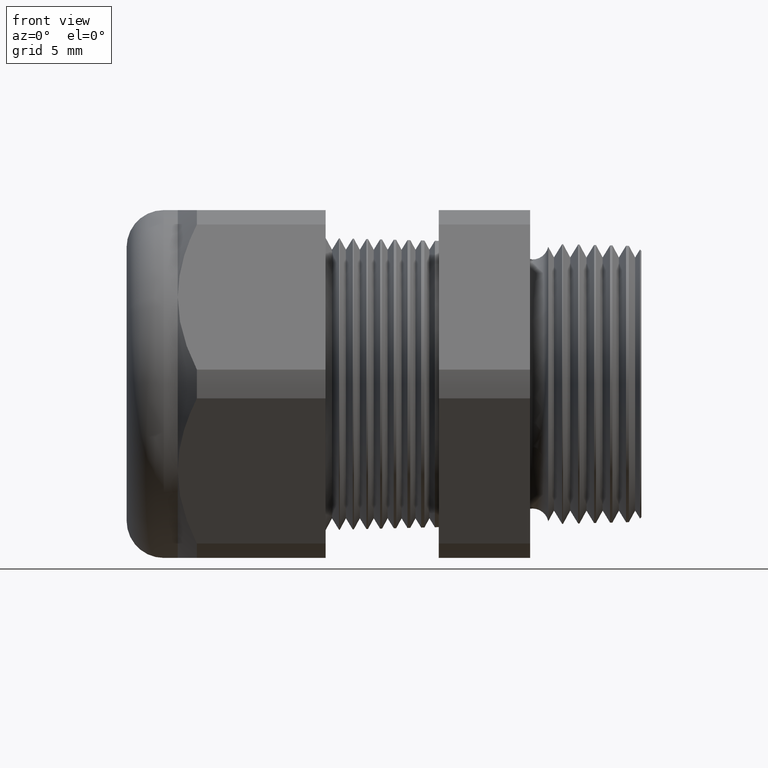
[diagram: clean part render]
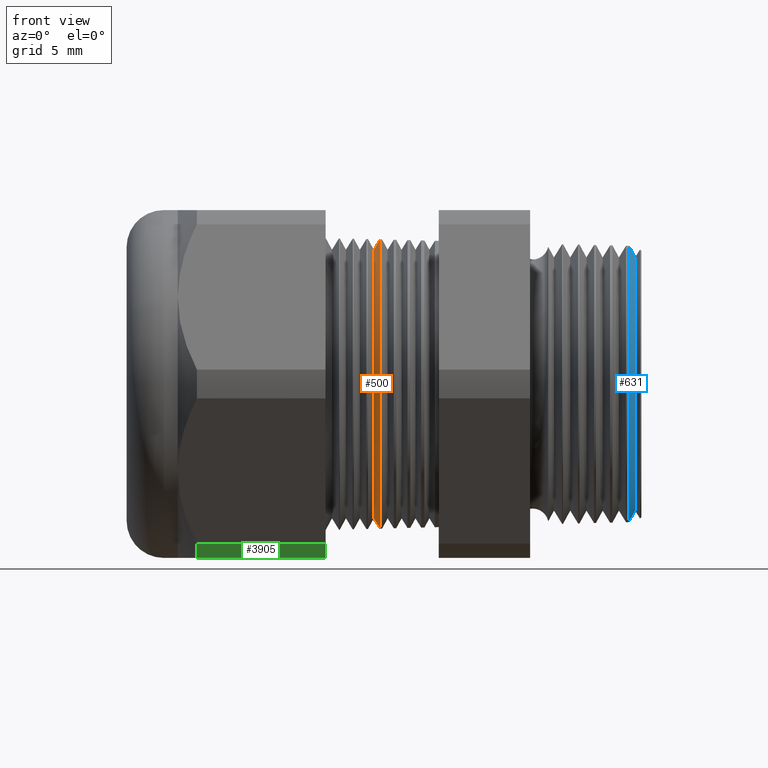
[diagram: same view with three faces highlighted in distinct colors, each labeled with its STEP entity id]
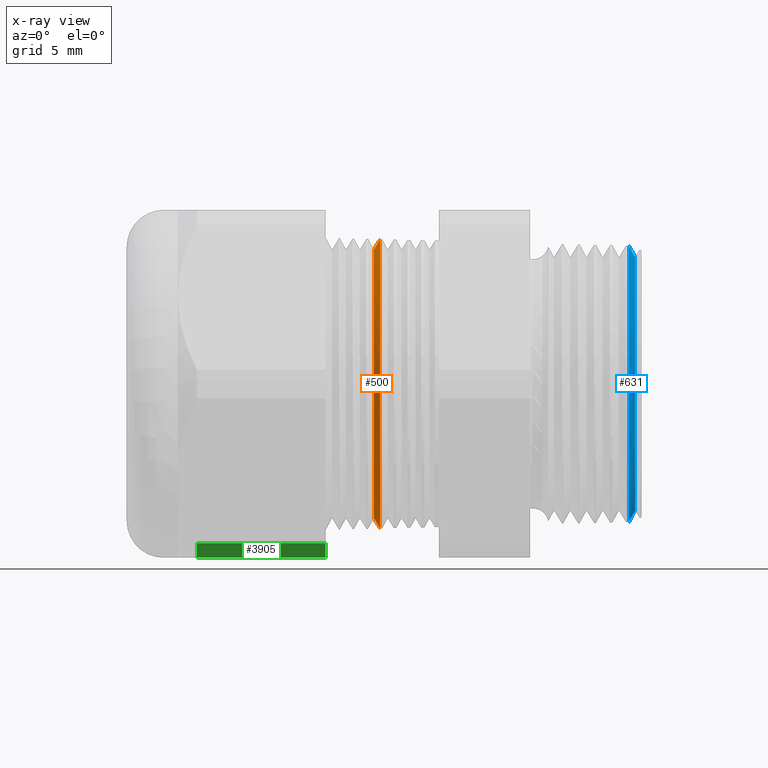
[diagram: x-ray of the same camera — body ghosted, the three highlighted faces saturated]
A machine part, front view with three faces highlighted in distinct colors.
The next image is the same camera in x-ray (body ghosted, the three faces saturated) — at least one of them is partly hidden behind the body in this view.
Their STEP definitions:

[orange] entity #500 — the highlighted conical surface has half-angle 58.5 deg.
#426 = ORIENTED_EDGE ( 'NONE', *, *, #445, .T. ) ;
#427 = ORIENTED_EDGE ( 'NONE', *, *, #768, .T. ) ;
#428 = ORIENTED_EDGE ( 'NONE', *, *, #3116, .T. ) ;
#445 = EDGE_CURVE ( 'NONE', #752, #751, #1692, .T. ) ;
#500 = ADVANCED_FACE ( 'NONE', ( #1761 ), #1760, .T. ) ;
#751 = VERTEX_POINT ( 'NONE', #2226 ) ;
#752 = VERTEX_POINT ( 'NONE', #2225 ) ;
#754 = EDGE_CURVE ( 'NONE', #752, #755, #2224, .T. ) ;
#755 = VERTEX_POINT ( 'NONE', #2220 ) ;
#758 = VERTEX_POINT ( 'NONE', #2214 ) ;
#768 = EDGE_CURVE ( 'NONE', #751, #758, #2261, .T. ) ;
#1691 = AXIS2_PLACEMENT_3D ( 'NONE', #1697, #1754, #1753 ) ;
#1692 = CIRCLE ( 'NONE', #1691, 0.2896307351718082600 ) ;
#1697 = CARTESIAN_POINT ( 'NONE',  ( -0.6470917547981791500, 0.0000000000000000000, 0.0000000000000000000 ) ) ;
#1753 = DIRECTION ( 'NONE',  ( 0.0000000000000000000, 0.0000000000000000000, -1.000000000000000000 ) ) ;
#1754 = DIRECTION ( 'NONE',  ( 1.000000000000000000, 0.0000000000000000000, 0.0000000000000000000 ) ) ;
#1755 = DIRECTION ( 'NONE',  ( 0.0000000000000000000, 0.0000000000000000000, -1.000000000000000000 ) ) ;
#1756 = DIRECTION ( 'NONE',  ( 1.000000000000000000, 0.0000000000000000000, 0.0000000000000000000 ) ) ;
#1757 = CARTESIAN_POINT ( 'NONE',  ( -0.6470917547981791500, 0.0000000000000000000, 0.0000000000000000000 ) ) ;
#1758 = AXIS2_PLACEMENT_3D ( 'NONE', #1757, #1756, #1755 ) ;
#1760 = CONICAL_SURFACE ( 'NONE', #1758, 0.2896307351718082600, 1.021017612416696300 ) ;
#1761 = FACE_OUTER_BOUND ( 'NONE', #3133, .T. ) ;
#2214 = CARTESIAN_POINT ( 'NONE',  ( -0.6334299194138568500, 3.819977376450093400E-017, -0.3119248242929889000 ) ) ;
#2220 = CARTESIAN_POINT ( 'NONE',  ( -0.6334299194138568500, 0.0000000000000000000, 0.3119248242929889000 ) ) ;
#2221 = DIRECTION ( 'NONE',  ( 0.5224985647159373600, 1.044183048100720900E-016, 0.8526401643540992800 ) ) ;
#2222 = VECTOR ( 'NONE', #2221, 39.37007874015748100 ) ;
#2223 = CARTESIAN_POINT ( 'NONE',  ( -0.6470917547981791500, 3.546953527628497700E-017, 0.2896307351718082600 ) ) ;
#2224 = LINE ( 'NONE', #2223, #2222 ) ;
#2225 = CARTESIAN_POINT ( 'NONE',  ( -0.6470917547981791500, 0.0000000000000000000, 0.2896307351718082600 ) ) ;
#2226 = CARTESIAN_POINT ( 'NONE',  ( -0.6470917547981791500, 3.687656511454631700E-017, -0.2896307351718082600 ) ) ;
#2258 = DIRECTION ( 'NONE',  ( 0.5224985647159373600, 0.0000000000000000000, -0.8526401643540992800 ) ) ;
#2259 = VECTOR ( 'NONE', #2258, 39.37007874015748100 ) ;
#2260 = CARTESIAN_POINT ( 'NONE',  ( -0.6470917547981791500, 0.0000000000000000000, -0.2896307351718082600 ) ) ;
#2261 = LINE ( 'NONE', #2260, #2259 ) ;
#2677 = DIRECTION ( 'NONE',  ( 0.0000000000000000000, 0.0000000000000000000, -1.000000000000000000 ) ) ;
#2678 = DIRECTION ( 'NONE',  ( -1.000000000000000000, 0.0000000000000000000, 0.0000000000000000000 ) ) ;
#2679 = CARTESIAN_POINT ( 'NONE',  ( -0.6334299194138568500, 0.0000000000000000000, 0.0000000000000000000 ) ) ;
#2680 = AXIS2_PLACEMENT_3D ( 'NONE', #2679, #2678, #2677 ) ;
#2685 = CIRCLE ( 'NONE', #2680, 0.3119248242929889600 ) ;
#3116 = EDGE_CURVE ( 'NONE', #758, #755, #2685, .T. ) ;
#3119 = ORIENTED_EDGE ( 'NONE', *, *, #754, .F. ) ;
#3133 = EDGE_LOOP ( 'NONE', ( #3119, #426, #427, #428 ) ) ;

[blue] entity #631 — the highlighted conical surface has half-angle 61.5 deg.
#179 = EDGE_CURVE ( 'NONE', #3158, #3156, #1305, .T. ) ;
#631 = ADVANCED_FACE ( 'NONE', ( #1991 ), #1988, .T. ) ;
#632 = EDGE_LOOP ( 'NONE', ( #633, #634, #636, #637 ) ) ;
#633 = ORIENTED_EDGE ( 'NONE', *, *, #3153, .F. ) ;
#634 = ORIENTED_EDGE ( 'NONE', *, *, #635, .F. ) ;
#635 = EDGE_CURVE ( 'NONE', #3186, #3183, #1989, .T. ) ;
#636 = ORIENTED_EDGE ( 'NONE', *, *, #3154, .T. ) ;
#637 = ORIENTED_EDGE ( 'NONE', *, *, #179, .T. ) ;
#1302 = DIRECTION ( 'NONE',  ( 0.0000000000000000000, 0.0000000000000000000, 1.000000000000000000 ) ) ;
#1303 = DIRECTION ( 'NONE',  ( 1.000000000000000000, 0.0000000000000000000, 0.0000000000000000000 ) ) ;
#1304 = AXIS2_PLACEMENT_3D ( 'NONE', #1311, #1303, #1302 ) ;
#1305 = CIRCLE ( 'NONE', #1304, 0.2978771583443559600 ) ;
#1311 = CARTESIAN_POINT ( 'NONE',  ( -0.09697120011612865600, 0.0000000000000000000, 0.0000000000000000000 ) ) ;
#1981 = DIRECTION ( 'NONE',  ( 0.0000000000000000000, 0.0000000000000000000, -1.000000000000000000 ) ) ;
#1982 = DIRECTION ( 'NONE',  ( 1.000000000000000000, 0.0000000000000000000, 0.0000000000000000000 ) ) ;
#1983 = CARTESIAN_POINT ( 'NONE',  ( -0.08347073567907516100, 0.0000000000000000000, 0.0000000000000000000 ) ) ;
#1984 = AXIS2_PLACEMENT_3D ( 'NONE', #1983, #1982, #1981 ) ;
#1985 = DIRECTION ( 'NONE',  ( 0.0000000000000000000, 0.0000000000000000000, 1.000000000000000000 ) ) ;
#1986 = DIRECTION ( 'NONE',  ( -1.000000000000000000, 0.0000000000000000000, 0.0000000000000000000 ) ) ;
#1987 = AXIS2_PLACEMENT_3D ( 'NONE', #1990, #1986, #1985 ) ;
#1988 = CONICAL_SURFACE ( 'NONE', #1987, 0.3034555137900915000, 1.073377489976501000 ) ;
#1989 = CIRCLE ( 'NONE', #1984, 0.2730123959962614800 ) ;
#1990 = CARTESIAN_POINT ( 'NONE',  ( -0.09999999999999996400, 0.0000000000000000000, 0.0000000000000000000 ) ) ;
#1991 = FACE_OUTER_BOUND ( 'NONE', #632, .T. ) ;
#2736 = DIRECTION ( 'NONE',  ( -0.4771587602596187900, 0.0000000000000000000, 0.8788171126619597200 ) ) ;
#2737 = VECTOR ( 'NONE', #2736, 39.37007874015748900 ) ;
#2738 = CARTESIAN_POINT ( 'NONE',  ( -0.09999999999999996400, 0.0000000000000000000, 0.3034555137900915000 ) ) ;
#2739 = LINE ( 'NONE', #2738, #2737 ) ;
#2740 = DIRECTION ( 'NONE',  ( -0.4771587602596187900, 1.076240564057388000E-016, -0.8788171126619597200 ) ) ;
#2741 = VECTOR ( 'NONE', #2740, 39.37007874015748900 ) ;
#2742 = CARTESIAN_POINT ( 'NONE',  ( -0.09999999999999996400, 3.716258236466510600E-017, -0.3034555137900915000 ) ) ;
#2747 = LINE ( 'NONE', #2742, #2741 ) ;
#2794 = CARTESIAN_POINT ( 'NONE',  ( -0.09697120011612865600, 0.0000000000000000000, 0.2978771583443559600 ) ) ;
#2795 = CARTESIAN_POINT ( 'NONE',  ( -0.09697120011612865600, 3.648931353910530600E-017, -0.2978771583443559600 ) ) ;
#2806 = CARTESIAN_POINT ( 'NONE',  ( -0.08347073567907516100, 0.0000000000000000000, 0.2730123959962614800 ) ) ;
#2811 = CARTESIAN_POINT ( 'NONE',  ( -0.08347073567907516100, 3.495690326949480300E-017, -0.2730123959962614800 ) ) ;
#3153 = EDGE_CURVE ( 'NONE', #3183, #3156, #2747, .T. ) ;
#3154 = EDGE_CURVE ( 'NONE', #3186, #3158, #2739, .T. ) ;
#3156 = VERTEX_POINT ( 'NONE', #2795 ) ;
#3158 = VERTEX_POINT ( 'NONE', #2794 ) ;
#3183 = VERTEX_POINT ( 'NONE', #2811 ) ;
#3186 = VERTEX_POINT ( 'NONE', #2806 ) ;

[green] entity #3905 — the highlighted cylindrical surface (partial cylindrical patch) has radius 10.5727 mm, axis along (-1, 0, 0).
#69 = VERTEX_POINT ( 'NONE', #1120 ) ;
#70 = EDGE_CURVE ( 'NONE', #69, #955, #1119, .T. ) ;
#955 = VERTEX_POINT ( 'NONE', #2637 ) ;
#1116 = DIRECTION ( 'NONE',  ( -1.000000000000000000, 0.0000000000000000000, 0.0000000000000000000 ) ) ;
#1117 = VECTOR ( 'NONE', #1116, 39.37007874015748100 ) ;
#1118 = CARTESIAN_POINT ( 'NONE',  ( -0.06999999999999993700, -0.2344281053908200400, -0.3439586107409880500 ) ) ;
#1119 = LINE ( 'NONE', #1118, #1117 ) ;
#1120 = CARTESIAN_POINT ( 'NONE',  ( -0.7508661417322831700, -0.2344281053908200400, -0.3439586107409880500 ) ) ;
#2637 = CARTESIAN_POINT ( 'NONE',  ( -1.028513779527559000, -0.2344281053908200400, -0.3439586107409880500 ) ) ;
#3050 = DIRECTION ( 'NONE',  ( 0.0000000000000000000, 0.0000000000000000000, -1.000000000000000000 ) ) ;
#3051 = DIRECTION ( 'NONE',  ( 1.000000000000000000, 0.0000000000000000000, 0.0000000000000000000 ) ) ;
#3052 = CARTESIAN_POINT ( 'NONE',  ( -1.028513779527559000, 0.0000000000000000000, 0.0000000000000000000 ) ) ;
#3053 = AXIS2_PLACEMENT_3D ( 'NONE', #3052, #3051, #3050 ) ;
#3054 = CIRCLE ( 'NONE', #3053, 0.4162499999999999500 ) ;
#3448 = VECTOR ( 'NONE', #3501, 39.37007874015748100 ) ;
#3449 = CARTESIAN_POINT ( 'NONE',  ( -0.06999999999999993700, -0.1806628420566884200, -0.3749999999999999400 ) ) ;
#3450 = LINE ( 'NONE', #3449, #3448 ) ;
#3452 = DIRECTION ( 'NONE',  ( 0.0000000000000000000, 0.0000000000000000000, 1.000000000000000000 ) ) ;
#3453 = DIRECTION ( 'NONE',  ( -1.000000000000000000, 0.0000000000000000000, 0.0000000000000000000 ) ) ;
#3454 = CARTESIAN_POINT ( 'NONE',  ( -0.06999999999999993700, 0.0000000000000000000, 0.0000000000000000000 ) ) ;
#3455 = AXIS2_PLACEMENT_3D ( 'NONE', #3454, #3453, #3452 ) ;
#3456 = CYLINDRICAL_SURFACE ( 'NONE', #3455, 0.4162499999999999500 ) ;
#3457 = FACE_OUTER_BOUND ( 'NONE', #3897, .T. ) ;
#3501 = DIRECTION ( 'NONE',  ( -1.000000000000000000, 0.0000000000000000000, 0.0000000000000000000 ) ) ;
#3504 = DIRECTION ( 'NONE',  ( 0.0000000000000000000, 0.0000000000000000000, -1.000000000000000000 ) ) ;
#3505 = DIRECTION ( 'NONE',  ( 1.000000000000000000, 0.0000000000000000000, 0.0000000000000000000 ) ) ;
#3506 = CARTESIAN_POINT ( 'NONE',  ( -0.7508661417322831700, 0.0000000000000000000, 0.0000000000000000000 ) ) ;
#3507 = AXIS2_PLACEMENT_3D ( 'NONE', #3506, #3505, #3504 ) ;
#3508 = CIRCLE ( 'NONE', #3507, 0.4162499999999999500 ) ;
#3529 = CARTESIAN_POINT ( 'NONE',  ( -0.7508661417322831700, -0.1806628420566884200, -0.3749999999999999400 ) ) ;
#3531 = CARTESIAN_POINT ( 'NONE',  ( -1.028513779527559200, -0.1806628420566884800, -0.3749999999999999400 ) ) ;
#3757 = ORIENTED_EDGE ( 'NONE', *, *, #3766, .T. ) ;
#3766 = EDGE_CURVE ( 'NONE', #955, #3921, #3054, .T. ) ;
#3767 = ORIENTED_EDGE ( 'NONE', *, *, #3929, .F. ) ;
#3768 = ORIENTED_EDGE ( 'NONE', *, *, #3907, .F. ) ;
#3894 = ORIENTED_EDGE ( 'NONE', *, *, #70, .T. ) ;
#3897 = EDGE_LOOP ( 'NONE', ( #3894, #3757, #3768, #3767 ) ) ;
#3905 = ADVANCED_FACE ( 'NONE', ( #3457 ), #3456, .T. ) ;
#3907 = EDGE_CURVE ( 'NONE', #3923, #3921, #3450, .T. ) ;
#3921 = VERTEX_POINT ( 'NONE', #3531 ) ;
#3923 = VERTEX_POINT ( 'NONE', #3529 ) ;
#3929 = EDGE_CURVE ( 'NONE', #69, #3923, #3508, .T. ) ;